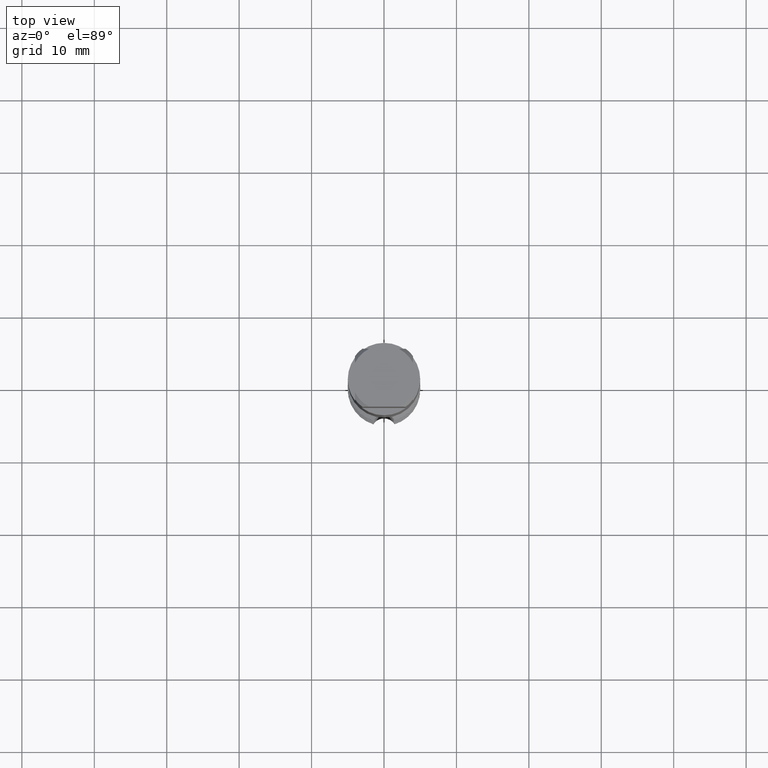
[diagram: clean part render]
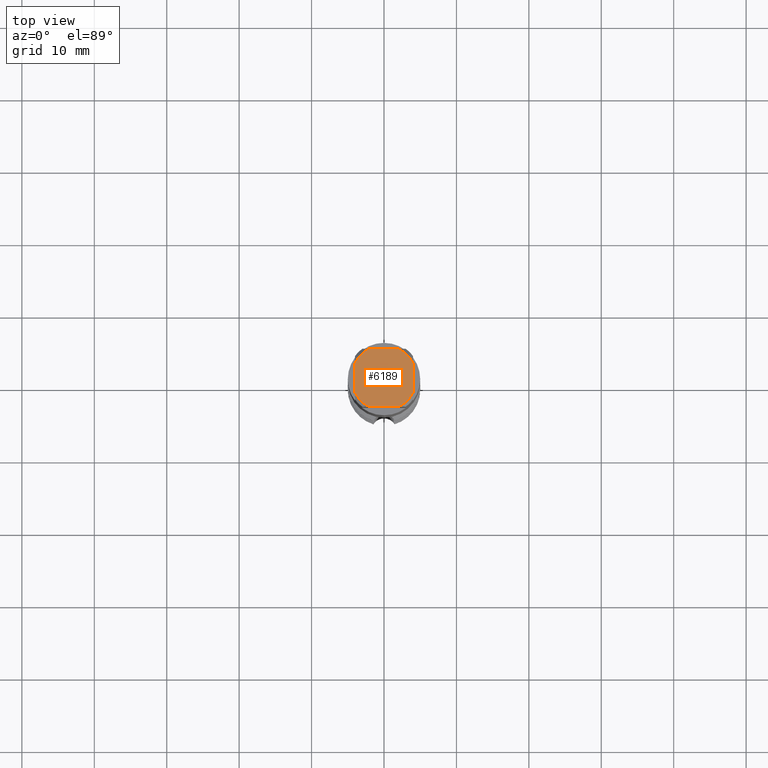
[diagram: same view with one face highlighted and labeled with its STEP entity id]
A machine part, top view. The second image highlights one B-rep face of the part: STEP entity #6189.
In plain terms, the highlighted planar face has unit normal (-0, 0, 1).
Its self-contained STEP definition (entity closure, byte-faithful):
#3263=EDGE_CURVE('',#4455,#7307,#8850,.T.);
#3509=EDGE_CURVE('',#5815,#8309,#9112,.T.);
#3577=EDGE_CURVE('',#5827,#7891,#9183,.T.);
#4371=EDGE_CURVE('',#8129,#7891,#10056,.T.);
#4375=VERTEX_POINT('',#10060);
#4389=EDGE_CURVE('',#5827,#4375,#10076,.T.);
#4455=VERTEX_POINT('',#10147);
#5013=EDGE_CURVE('',#4455,#8309,#10757,.T.);
#5429=EDGE_CURVE('',#8129,#7307,#11214,.T.);
#5815=VERTEX_POINT('',#11634);
#5827=VERTEX_POINT('',#11647);
#6189=ADVANCED_FACE('',(#12040),#12041,.T.);
#7307=VERTEX_POINT('',#13258);
#7465=EDGE_CURVE('',#5815,#4375,#13427,.T.);
#7891=VERTEX_POINT('',#13890);
#8129=VERTEX_POINT('',#14150);
#8309=VERTEX_POINT('',#14347);
#8850=CIRCLE('',#15233,4.5);
#9112=CIRCLE('',#15656,4.5);
#9183=LINE('',#15787,#15788);
#10056=CIRCLE('',#17321,4.5);
#10060=CARTESIAN_POINT('',(4.0,2.06155281280883,0.0));
#10076=CIRCLE('',#17348,4.5);
#10147=CARTESIAN_POINT('',(-2.06155281280883,-4.0,0.0));
#10757=LINE('',#18464,#18465);
#11214=LINE('',#19228,#19229);
#11634=CARTESIAN_POINT('',(4.0,-2.06155281280883,0.0));
#11647=CARTESIAN_POINT('',(2.06155281280883,4.0,0.0));
#12040=FACE_OUTER_BOUND('',#20749,.T.);
#12041=PLANE('',#20750);
#13258=CARTESIAN_POINT('',(-4.0,-2.06155281280883,0.0));
#13427=LINE('',#23150,#23151);
#13890=CARTESIAN_POINT('',(-2.06155281280883,4.0,0.0));
#14150=CARTESIAN_POINT('',(-4.0,2.06155281280883,0.0));
#14347=CARTESIAN_POINT('',(2.06155281280883,-4.0,0.0));
#15233=AXIS2_PLACEMENT_3D('',#25588,#25589,#25590);
#15656=AXIS2_PLACEMENT_3D('',#25823,#25824,#25825);
#15787=CARTESIAN_POINT('',(0.0,4.0,0.0));
#15788=VECTOR('',#25885,1.0);
#17321=AXIS2_PLACEMENT_3D('',#26839,#26840,#26841);
#17348=AXIS2_PLACEMENT_3D('',#26866,#26867,#26868);
#18464=CARTESIAN_POINT('',(0.0,-4.0,0.0));
#18465=VECTOR('',#27592,1.0);
#19228=CARTESIAN_POINT('',(-4.0,1.125,0.0));
#19229=VECTOR('',#28284,1.0);
#20749=EDGE_LOOP('',(#29160,#29161,#29162,#29163,#29164,#29165,#29166,#29167));
#20750=AXIS2_PLACEMENT_3D('',#29168,#29169,#29170);
#23150=CARTESIAN_POINT('',(4.0,1.125,0.0));
#23151=VECTOR('',#30777,1.0);
#25588=CARTESIAN_POINT('',(0.0,0.0,0.0));
#25589=DIRECTION('',(0.0,0.0,-1.0));
#25590=DIRECTION('',(0.0,1.0,0.0));
#25823=CARTESIAN_POINT('',(0.0,0.0,0.0));
#25824=DIRECTION('',(0.0,0.0,-1.0));
#25825=DIRECTION('',(0.0,1.0,0.0));
#25885=DIRECTION('',(-1.0,0.0,0.0));
#26839=CARTESIAN_POINT('',(0.0,0.0,0.0));
#26840=DIRECTION('',(0.0,0.0,-1.0));
#26841=DIRECTION('',(0.0,1.0,0.0));
#26866=CARTESIAN_POINT('',(0.0,0.0,0.0));
#26867=DIRECTION('',(0.0,0.0,-1.0));
#26868=DIRECTION('',(0.0,1.0,0.0));
#27592=DIRECTION('',(1.0,0.0,0.0));
#28284=DIRECTION('',(-0.0,-1.0,0.0));
#29160=ORIENTED_EDGE('',*,*,#5429,.T.);
#29161=ORIENTED_EDGE('',*,*,#3263,.F.);
#29162=ORIENTED_EDGE('',*,*,#5013,.T.);
#29163=ORIENTED_EDGE('',*,*,#3509,.F.);
#29164=ORIENTED_EDGE('',*,*,#7465,.T.);
#29165=ORIENTED_EDGE('',*,*,#4389,.F.);
#29166=ORIENTED_EDGE('',*,*,#3577,.T.);
#29167=ORIENTED_EDGE('',*,*,#4371,.F.);
#29168=CARTESIAN_POINT('',(0.0,2.25,0.0));
#29169=DIRECTION('',(-0.0,0.0,1.0));
#29170=DIRECTION('',(0.0,-1.0,0.0));
#30777=DIRECTION('',(-0.0,1.0,0.0));